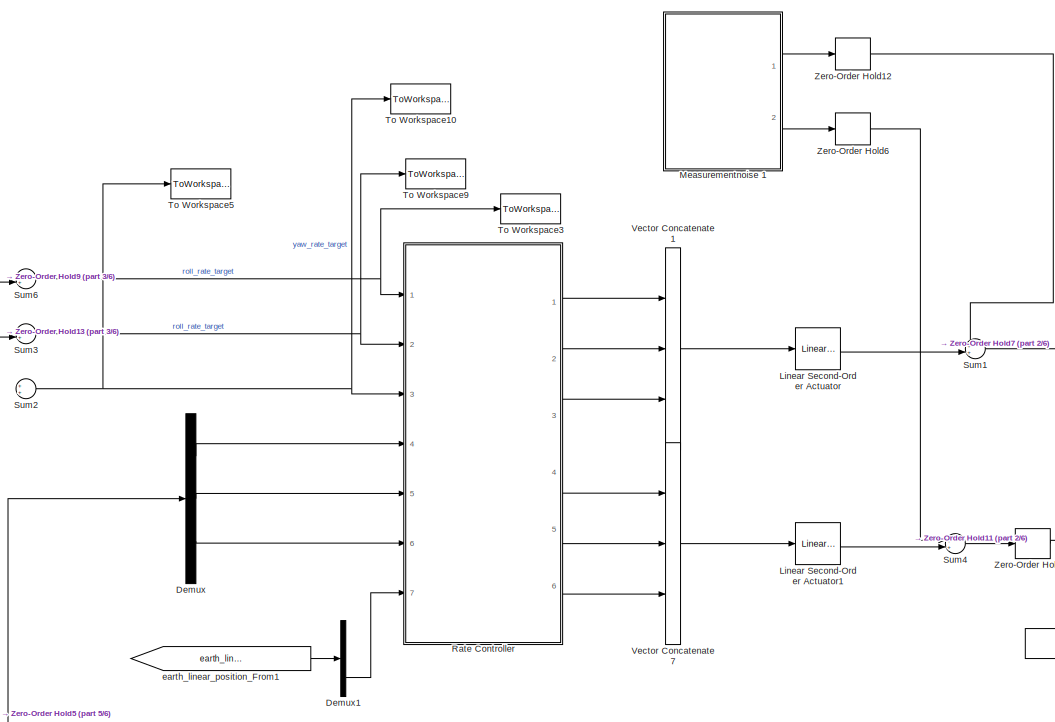
[diagram: root canvas - part 1/6, top center region]
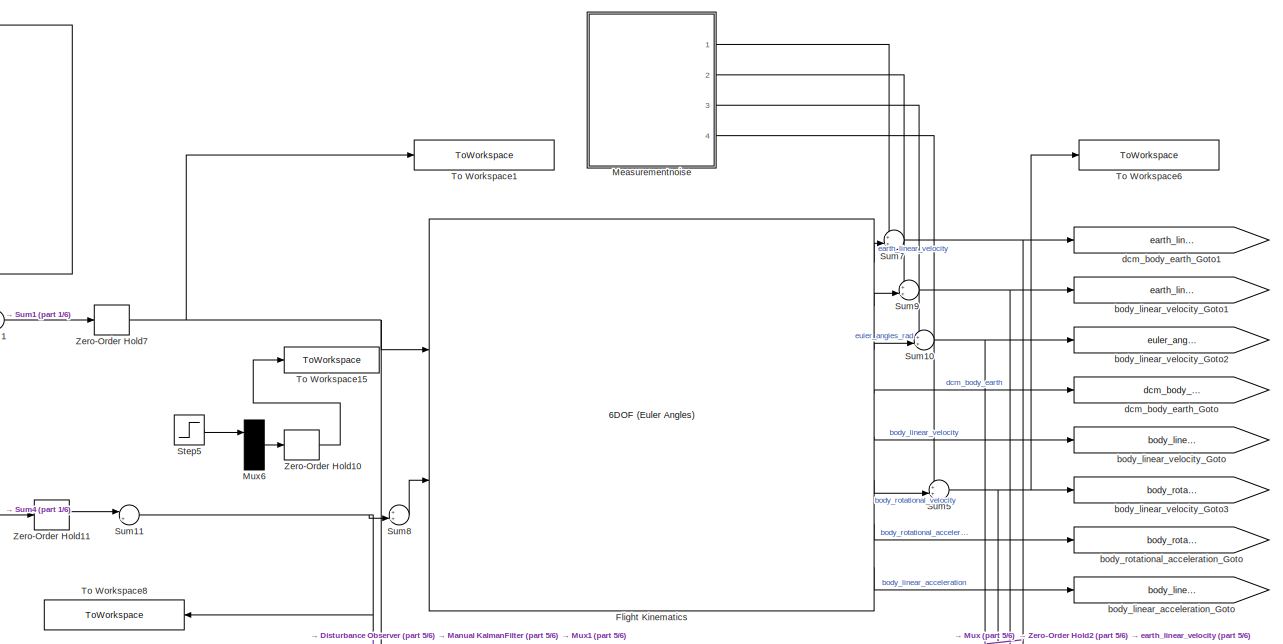
[diagram: root canvas - part 2/6, top right region]
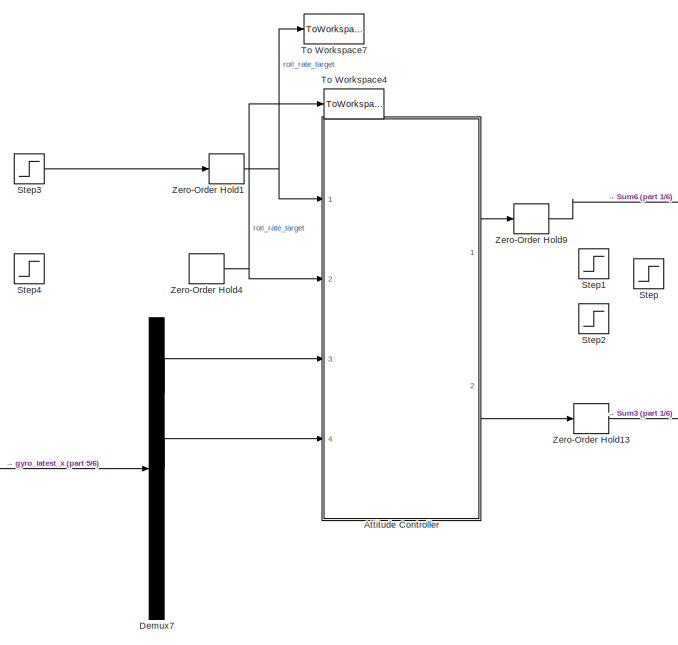
[diagram: root canvas - part 3/6, top left region]
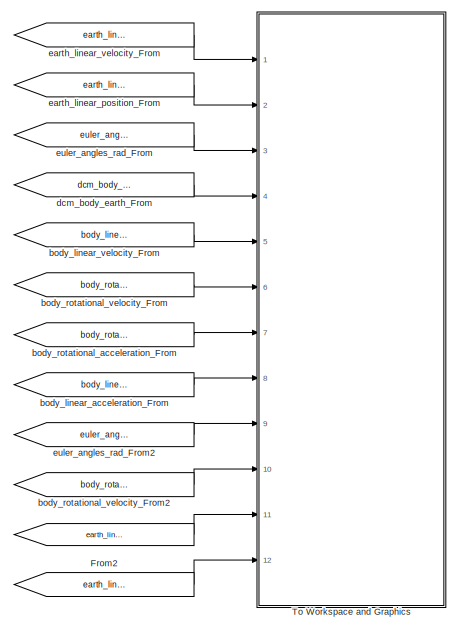
[diagram: root canvas - part 4/6, middle right region]
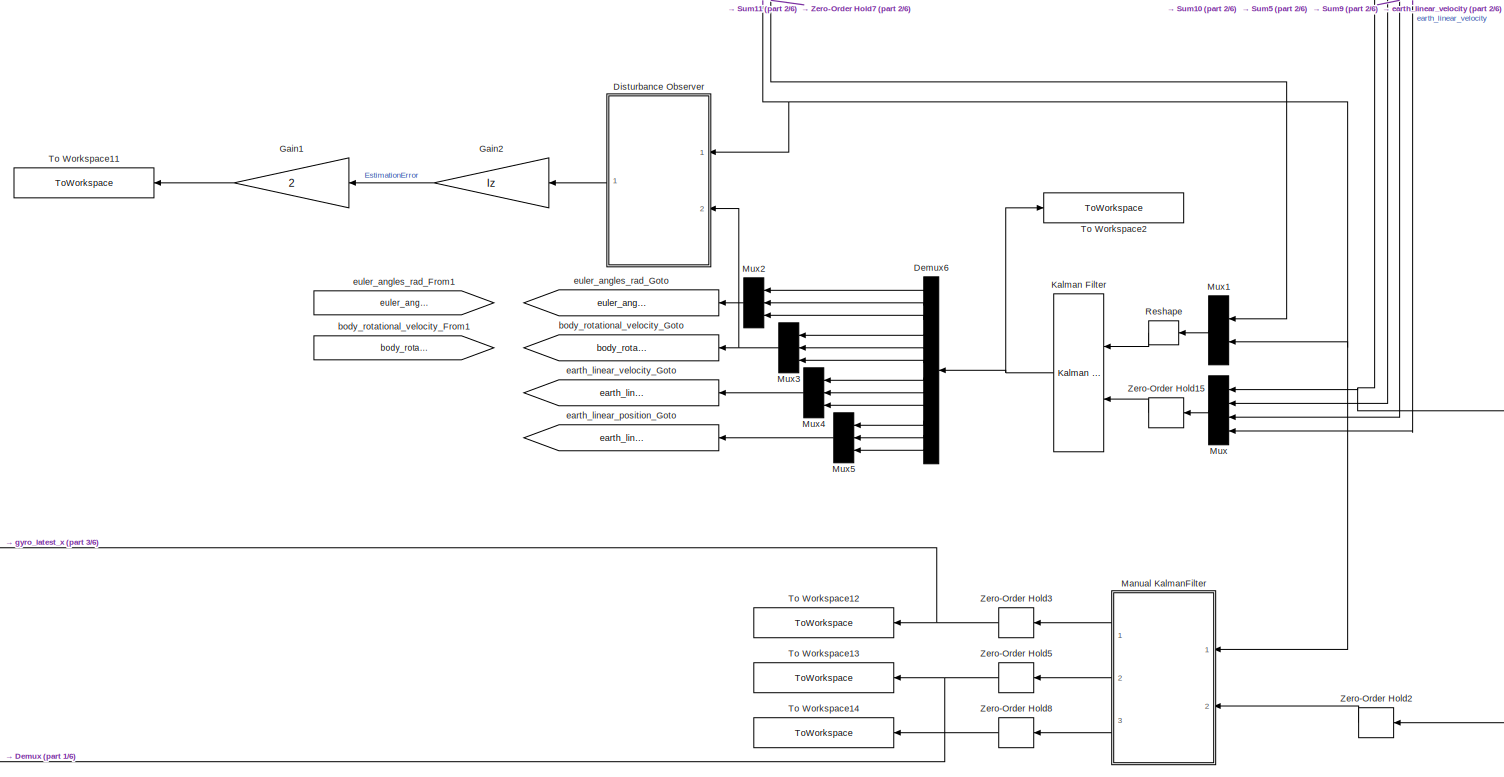
[diagram: root canvas - part 5/6, bottom center region]
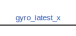
[diagram: root canvas - part 6/6, bottom left region]
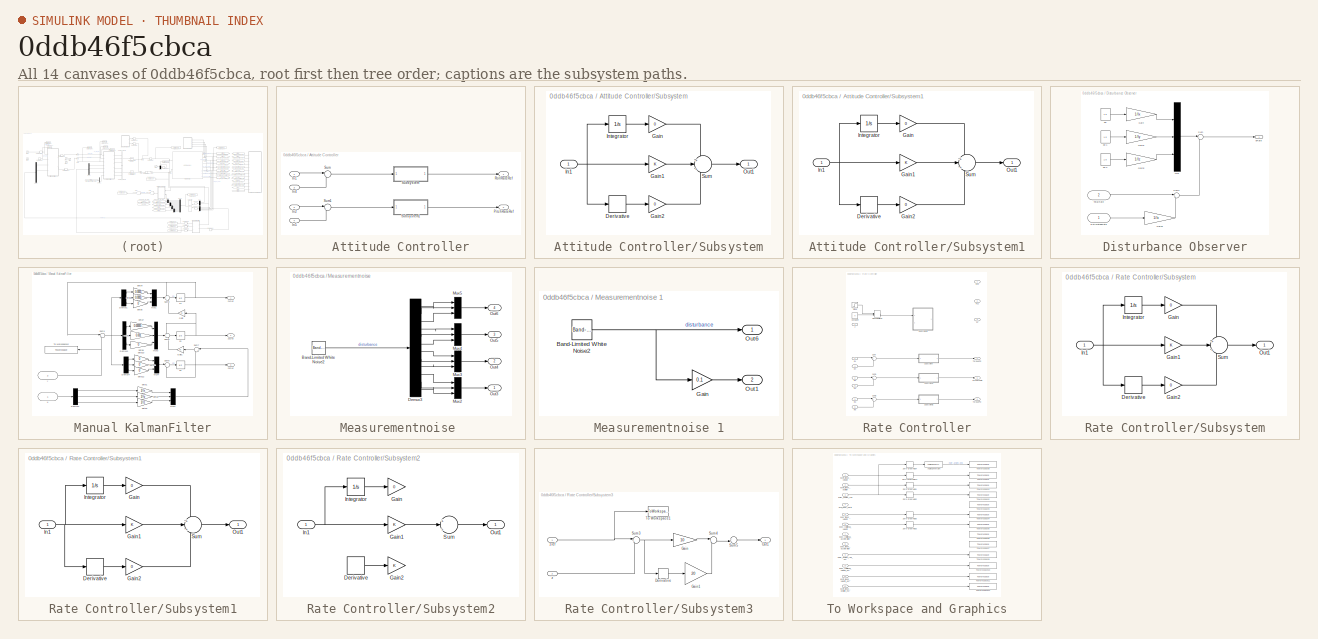
[diagram: thumbnail index - all 14 canvases of the model, root first then tree order]
MODEL slx_0ddb46f5cbca
KIND model
CONFIG AbsTol = auto
CONFIG FixedStep = 0.0000001
CONFIG MaxStep = auto
CONFIG MinStep = auto
CONFIG RelTol = 1e-3
CONFIG SampleTimeConstraint = Unconstrained
CONFIG Solver = VariableStepAuto
CONFIG SolverMode = Auto
CONFIG SolverName = VariableStepAuto
CONFIG StartTime = 0.0
CONFIG StopTime = 10
WORKSPACE source: MAT-file member
WORKSPACE MCOS: class17 (value not decoded)
BLOCK [From]       
  GotoTag = earth_linear_velocity_est
  TagVisibility = global
BLOCK [SubSystem] Attitude Controller
  Ports = [4, 2]
  RequestExecContextInheritance = off
  Variant = off
BLOCK [Inport] Attitude Controller/In1
  IconDisplay = Port number
BLOCK [Inport] Attitude Controller/In2
  IconDisplay = Port number
  Port = 2
BLOCK [Inport] Attitude Controller/In4
  IconDisplay = Port number
  Port = 3
BLOCK [Inport] Attitude Controller/In5
  IconDisplay = Port number
  Port = 4
BLOCK [Outport] Attitude Controller/PitchRateRef
  IconDisplay = Port number
  Port = 2
BLOCK [Outport] Attitude Controller/RollRateRef
  IconDisplay = Port number
BLOCK [SubSystem] Attitude Controller/Subsystem
  Ports = [1, 1]
  RequestExecContextInheritance = off
  Variant = off
BLOCK [Derivative] Attitude Controller/Subsystem/Derivative
BLOCK [Gain] Attitude Controller/Subsystem/Gain
  Gain = 0
  OutDataTypeStr = Inherit: Inherit via internal rule
  ParamDataTypeStr = Inherit: Inherit via internal rule
  SaturateOnIntegerOverflow = off
BLOCK [Gain] Attitude Controller/Subsystem/Gain1
  OutDataTypeStr = Inherit: Inherit via internal rule
  ParamDataTypeStr = Inherit: Inherit via internal rule
  SaturateOnIntegerOverflow = off
BLOCK [Gain] Attitude Controller/Subsystem/Gain2
  Gain = 0
  OutDataTypeStr = Inherit: Inherit via internal rule
  ParamDataTypeStr = Inherit: Inherit via internal rule
  SaturateOnIntegerOverflow = off
BLOCK [Inport] Attitude Controller/Subsystem/In1
  IconDisplay = Port number
BLOCK [Integrator] Attitude Controller/Subsystem/Integrator
  Ports = [1, 1]
BLOCK [Outport] Attitude Controller/Subsystem/Out1
  IconDisplay = Port number
BLOCK [Sum] Attitude Controller/Subsystem/Sum
  IconShape = round
  InputSameDT = off
  Inputs = +|+|+
  OutDataTypeStr = Inherit: Inherit via internal rule
  Ports = [3, 1]
  SaturateOnIntegerOverflow = off
BLOCK [SubSystem] Attitude Controller/Subsystem1
  Ports = [1, 1]
  RequestExecContextInheritance = off
  Variant = off
BLOCK [Derivative] Attitude Controller/Subsystem1/Derivative
BLOCK [Gain] Attitude Controller/Subsystem1/Gain
  Gain = 0
  OutDataTypeStr = Inherit: Inherit via internal rule
  ParamDataTypeStr = Inherit: Inherit via internal rule
  SaturateOnIntegerOverflow = off
BLOCK [Gain] Attitude Controller/Subsystem1/Gain1
  OutDataTypeStr = Inherit: Inherit via internal rule
  ParamDataTypeStr = Inherit: Inherit via internal rule
  SaturateOnIntegerOverflow = off
BLOCK [Gain] Attitude Controller/Subsystem1/Gain2
  Gain = 0
  OutDataTypeStr = Inherit: Inherit via internal rule
  ParamDataTypeStr = Inherit: Inherit via internal rule
  SaturateOnIntegerOverflow = off
BLOCK [Inport] Attitude Controller/Subsystem1/In1
  IconDisplay = Port number
BLOCK [Integrator] Attitude Controller/Subsystem1/Integrator
  Ports = [1, 1]
BLOCK [Outport] Attitude Controller/Subsystem1/Out1
  IconDisplay = Port number
BLOCK [Sum] Attitude Controller/Subsystem1/Sum
  IconShape = round
  InputSameDT = off
  Inputs = +|+|+
  OutDataTypeStr = Inherit: Inherit via internal rule
  Ports = [3, 1]
  SaturateOnIntegerOverflow = off
BLOCK [Sum] Attitude Controller/Sum
  IconShape = round
  InputSameDT = off
  Inputs = |+-
  OutDataTypeStr = Inherit: Inherit via internal rule
  Ports = [2, 1]
  SaturateOnIntegerOverflow = off
BLOCK [Sum] Attitude Controller/Sum1
  IconShape = round
  InputSameDT = off
  Inputs = |+-
  OutDataTypeStr = Inherit: Inherit via internal rule
  Ports = [2, 1]
  SaturateOnIntegerOverflow = off
BLOCK [Demux] Demux
  DisplayOption = bar
  Outputs = 3
  Ports = [1, 3]
BLOCK [Demux] Demux1
  DisplayOption = bar
  Outputs = 3
  Ports = [1, 3]
BLOCK [Demux] Demux6
  DisplayOption = bar
  Outputs = 12
  Ports = [1, 12]
BLOCK [Demux] Demux7
  DisplayOption = bar
  Outputs = 3
  Ports = [1, 3]
BLOCK [SubSystem] Disturbance Observer
  Ports = [2, 1]
  RequestExecContextInheritance = off
  Variant = off
BLOCK [Inport] Disturbance Observer/EstimatedRate
  IconDisplay = Port number
BLOCK [Gain] Disturbance Observer/Gain
  Gain = 1/Ix
  OutDataTypeStr = Inherit: Inherit via internal rule
  ParamDataTypeStr = Inherit: Inherit via internal rule
  SaturateOnIntegerOverflow = off
BLOCK [Gain] Disturbance Observer/Gain1
  Gain = 1/Iy
  OutDataTypeStr = Inherit: Inherit via internal rule
  ParamDataTypeStr = Inherit: Inherit via internal rule
  SaturateOnIntegerOverflow = off
BLOCK [Gain] Disturbance Observer/Gain2
  Gain = 1/Iz
  OutDataTypeStr = Inherit: Inherit via internal rule
  ParamDataTypeStr = Inherit: Inherit via internal rule
  SaturateOnIntegerOverflow = off
BLOCK [Gain] Disturbance Observer/Gain3
  Gain = 1/Ix
  OutDataTypeStr = Inherit: Inherit via internal rule
  ParamDataTypeStr = Inherit: Inherit via internal rule
  SaturateOnIntegerOverflow = off
BLOCK [Mux] Disturbance Observer/Mux
  DisplayOption = bar
  Inputs = 3
  Ports = [3, 1]
BLOCK [Sum] Disturbance Observer/Sum
  IconShape = round
  InputSameDT = off
  Inputs = |+-
  OutDataTypeStr = Inherit: Inherit via internal rule
  Ports = [2, 1]
  SaturateOnIntegerOverflow = off
BLOCK [Sum] Disturbance Observer/Sum1
  IconShape = round
  InputSameDT = off
  Inputs = |+-
  OutDataTypeStr = Inherit: Inherit via internal rule
  Ports = [2, 1]
  SaturateOnIntegerOverflow = off
BLOCK [Inport] Disturbance Observer/TotalRate
  IconDisplay = Port number
  Port = 2
BLOCK [Constant] Disturbance Observer/d0 
  Value = 1.5
BLOCK [Constant] Disturbance Observer/d0 1
  Value = 1.5
BLOCK [Constant] Disturbance Observer/d0 2
  Value = 1.5
BLOCK [Outport] Disturbance Observer/dRate
  IconDisplay = Port number
BLOCK [Reference] Flight Kinematics  REF=aerolib6dof2/6DOF (Euler Angles)
  Ports = [2, 8]
  SourceBlock = aerolib6dof2/6DOF (Euler Angles)
  SourceType = 6DOF EoM (Body Axis)
BLOCK [From] From2
  GotoTag = earth_linear_position_est
  TagVisibility = global
BLOCK [Gain] Gain1
  Gain = 2
  OutDataTypeStr = Inherit: Inherit via internal rule
  ParamDataTypeStr = Inherit: Inherit via internal rule
  SaturateOnIntegerOverflow = off
BLOCK [Gain] Gain2
  Gain = Iz
  OutDataTypeStr = Inherit: Inherit via internal rule
  ParamDataTypeStr = Inherit: Inherit via internal rule
  SaturateOnIntegerOverflow = off
BLOCK [Reference] Kalman Filter  REF=ctrlSharedLib/Kalman Filter
  Ports = [2, 1]
  SourceBlock = ctrlSharedLib/Kalman Filter
  SourceType = ctrlKalmanFilter
BLOCK [Reference] Linear Second-Order Actuator  REF=aerolibactuator/Linear Second-Order Actuator
  Ports = [1, 1]
  SourceBlock = aerolibactuator/Linear Second-Order Actuator
  SourceType = LinearSecondOrderActuator
BLOCK [Reference] Linear Second-Order Actuator1  REF=aerolibactuator/Linear Second-Order Actuator
  Ports = [1, 1]
  SourceBlock = aerolibactuator/Linear Second-Order Actuator
  SourceType = LinearSecondOrderActuator
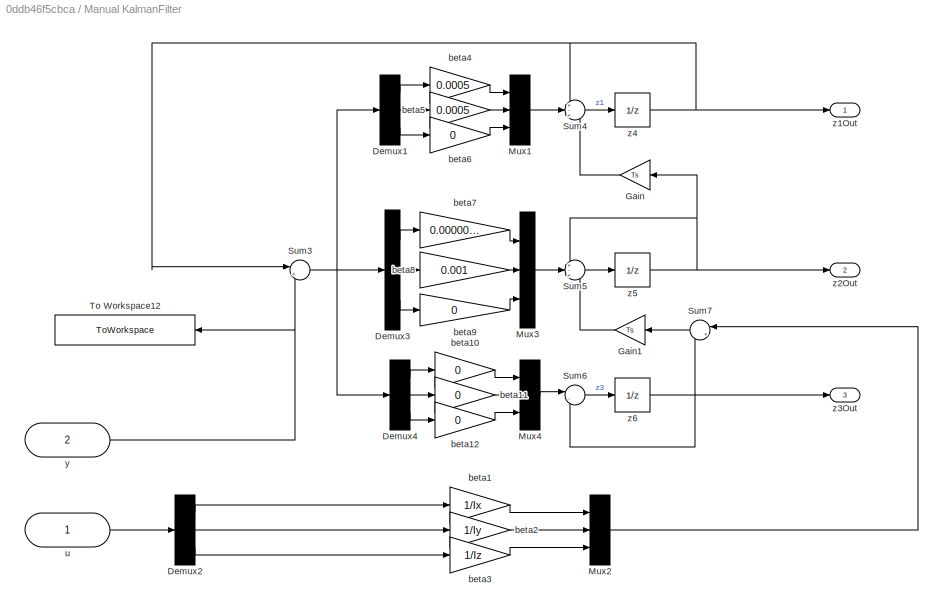
BLOCK [SubSystem] Manual KalmanFilter
  Ports = [2, 3]
  RequestExecContextInheritance = off
  Variant = off
BLOCK [Demux] Manual KalmanFilter/Demux1
  DisplayOption = bar
  Outputs = 3
  Ports = [1, 3]
BLOCK [Demux] Manual KalmanFilter/Demux2
  DisplayOption = bar
  Outputs = 3
  Ports = [1, 3]
BLOCK [Demux] Manual KalmanFilter/Demux3
  DisplayOption = bar
  Outputs = 3
  Ports = [1, 3]
BLOCK [Demux] Manual KalmanFilter/Demux4
  DisplayOption = bar
  Outputs = 3
  Ports = [1, 3]
BLOCK [Gain] Manual KalmanFilter/Gain
  Gain = Ts
  OutDataTypeStr = Inherit: Inherit via internal rule
  ParamDataTypeStr = Inherit: Inherit via internal rule
  SaturateOnIntegerOverflow = off
BLOCK [Gain] Manual KalmanFilter/Gain1
  Gain = Ts
  OutDataTypeStr = Inherit: Inherit via internal rule
  ParamDataTypeStr = Inherit: Inherit via internal rule
  SaturateOnIntegerOverflow = off
BLOCK [Mux] Manual KalmanFilter/Mux1
  DisplayOption = bar
  Inputs = 3
  Ports = [3, 1]
BLOCK [Mux] Manual KalmanFilter/Mux2
  DisplayOption = bar
  Inputs = 3
  Ports = [3, 1]
BLOCK [Mux] Manual KalmanFilter/Mux3
  DisplayOption = bar
  Inputs = 3
  Ports = [3, 1]
BLOCK [Mux] Manual KalmanFilter/Mux4
  DisplayOption = bar
  Inputs = 3
  Ports = [3, 1]
BLOCK [Sum] Manual KalmanFilter/Sum3
  IconShape = round
  InputSameDT = off
  Inputs = |+-
  OutDataTypeStr = Inherit: Inherit via internal rule
  Ports = [2, 1]
  SaturateOnIntegerOverflow = off
BLOCK [Sum] Manual KalmanFilter/Sum4
  IconShape = round
  InputSameDT = off
  Inputs = +-+
  OutDataTypeStr = Inherit: Inherit via internal rule
  Ports = [3, 1]
  SaturateOnIntegerOverflow = off
BLOCK [Sum] Manual KalmanFilter/Sum5
  IconShape = round
  InputSameDT = off
  Inputs = +-+
  OutDataTypeStr = Inherit: Inherit via internal rule
  Ports = [3, 1]
  SaturateOnIntegerOverflow = off
BLOCK [Sum] Manual KalmanFilter/Sum6
  IconShape = round
  InputSameDT = off
  Inputs = |-+
  OutDataTypeStr = Inherit: Inherit via internal rule
  Ports = [2, 1]
  SaturateOnIntegerOverflow = off
BLOCK [Sum] Manual KalmanFilter/Sum7
  IconShape = round
  InputSameDT = off
  Inputs = |++
  OutDataTypeStr = Inherit: Inherit via internal rule
  Ports = [2, 1]
  SaturateOnIntegerOverflow = off
BLOCK [ToWorkspace] Manual KalmanFilter/To Workspace12
  FixptAsFi = on
  MaxDataPoints = inf
  Ports = [1]
  SampleTime = -1
  Save2DSignal = 3-D array (concatenate along third dimension)
  VariableName = y
BLOCK [Gain] Manual KalmanFilter/beta1
  Gain = 1/Ix
  OutDataTypeStr = Inherit: Inherit via internal rule
  ParamDataTypeStr = Inherit: Inherit via internal rule
  SaturateOnIntegerOverflow = off
BLOCK [Gain] Manual KalmanFilter/beta10
  Gain = 0
  OutDataTypeStr = Inherit: Inherit via internal rule
  ParamDataTypeStr = Inherit: Inherit via internal rule
  SaturateOnIntegerOverflow = off
BLOCK [Gain] Manual KalmanFilter/beta11
  Gain = 0
  OutDataTypeStr = Inherit: Inherit via internal rule
  ParamDataTypeStr = Inherit: Inherit via internal rule
  SaturateOnIntegerOverflow = off
BLOCK [Gain] Manual KalmanFilter/beta12
  Gain = 0
  OutDataTypeStr = Inherit: Inherit via internal rule
  ParamDataTypeStr = Inherit: Inherit via internal rule
  SaturateOnIntegerOverflow = off
BLOCK [Gain] Manual KalmanFilter/beta2
  Gain = 1/Iy
  OutDataTypeStr = Inherit: Inherit via internal rule
  ParamDataTypeStr = Inherit: Inherit via internal rule
  SaturateOnIntegerOverflow = off
BLOCK [Gain] Manual KalmanFilter/beta3
  Gain = 1/Iz
  OutDataTypeStr = Inherit: Inherit via internal rule
  ParamDataTypeStr = Inherit: Inherit via internal rule
  SaturateOnIntegerOverflow = off
BLOCK [Gain] Manual KalmanFilter/beta4
  Gain = 0.0005
  OutDataTypeStr = Inherit: Inherit via internal rule
  ParamDataTypeStr = Inherit: Inherit via internal rule
  SaturateOnIntegerOverflow = off
BLOCK [Gain] Manual KalmanFilter/beta5
  Gain = 0.0005
  OutDataTypeStr = Inherit: Inherit via internal rule
  ParamDataTypeStr = Inherit: Inherit via internal rule
  SaturateOnIntegerOverflow = off
BLOCK [Gain] Manual KalmanFilter/beta6
  Gain = 0
  OutDataTypeStr = Inherit: Inherit via internal rule
  ParamDataTypeStr = Inherit: Inherit via internal rule
  SaturateOnIntegerOverflow = off
BLOCK [Gain] Manual KalmanFilter/beta7
  Gain = 0.0000000000001
  OutDataTypeStr = Inherit: Inherit via internal rule
  ParamDataTypeStr = Inherit: Inherit via internal rule
  SaturateOnIntegerOverflow = off
BLOCK [Gain] Manual KalmanFilter/beta8
  Gain = 0.001
  OutDataTypeStr = Inherit: Inherit via internal rule
  ParamDataTypeStr = Inherit: Inherit via internal rule
  SaturateOnIntegerOverflow = off
BLOCK [Gain] Manual KalmanFilter/beta9
  Gain = 0
  OutDataTypeStr = Inherit: Inherit via internal rule
  ParamDataTypeStr = Inherit: Inherit via internal rule
  SaturateOnIntegerOverflow = off
BLOCK [Inport] Manual KalmanFilter/u
  IconDisplay = Port number
BLOCK [Inport] Manual KalmanFilter/y
  IconDisplay = Port number
  Port = 2
BLOCK [Outport] Manual KalmanFilter/z1Out
  IconDisplay = Port number
BLOCK [Outport] Manual KalmanFilter/z2Out
  IconDisplay = Port number
  Port = 2
BLOCK [Outport] Manual KalmanFilter/z3Out
  IconDisplay = Port number
  Port = 3
BLOCK [UnitDelay] Manual KalmanFilter/z4
  InputProcessing = Elements as channels (sample based)
  SampleTime = Ts
BLOCK [UnitDelay] Manual KalmanFilter/z5
  InputProcessing = Elements as channels (sample based)
  SampleTime = Ts
BLOCK [UnitDelay] Manual KalmanFilter/z6
  InputProcessing = Elements as channels (sample based)
  SampleTime = Ts
BLOCK [SubSystem] Measurementnoise 
  Ports = [0, 4]
  RequestExecContextInheritance = off
  Variant = off
BLOCK [Reference] Measurementnoise /Band-Limited White Noise2  REF=simulink/Sources/Band-Limited
White Noise
  Ports = [0, 1]
  SourceBlock = simulink/Sources/Band-Limited\nWhite Noise
  SourceType = Band-Limited White Noise.
BLOCK [Demux] Measurementnoise /Demux3
  DisplayOption = bar
  Outputs = 12
  Ports = [1, 12]
BLOCK [Mux] Measurementnoise /Mux2
  DisplayOption = bar
  Inputs = 3
  Ports = [3, 1]
BLOCK [Mux] Measurementnoise /Mux3
  DisplayOption = bar
  Inputs = 3
  Ports = [3, 1]
BLOCK [Mux] Measurementnoise /Mux4
  DisplayOption = bar
  Inputs = 3
  Ports = [3, 1]
BLOCK [Mux] Measurementnoise /Mux5
  DisplayOption = bar
  Inputs = 3
  Ports = [3, 1]
BLOCK [Outport] Measurementnoise /Out3
  IconDisplay = Port number
BLOCK [Outport] Measurementnoise /Out4
  IconDisplay = Port number
  Port = 2
BLOCK [Outport] Measurementnoise /Out5
  IconDisplay = Port number
  Port = 3
BLOCK [Outport] Measurementnoise /Out6
  IconDisplay = Port number
  Port = 4
BLOCK [SubSystem] Measurementnoise 1
  Ports = [0, 2]
  RequestExecContextInheritance = off
  Variant = off
BLOCK [Reference] Measurementnoise 1/Band-Limited White Noise2  REF=simulink/Sources/Band-Limited
White Noise
  Ports = [0, 1]
  SourceBlock = simulink/Sources/Band-Limited\nWhite Noise
  SourceType = Band-Limited White Noise.
BLOCK [Gain] Measurementnoise 1/Gain
  Gain = 0.1
  OutDataTypeStr = Inherit: Inherit via internal rule
  ParamDataTypeStr = Inherit: Inherit via internal rule
  SaturateOnIntegerOverflow = off
BLOCK [Outport] Measurementnoise 1/Out1
  IconDisplay = Port number
  Port = 2
BLOCK [Outport] Measurementnoise 1/Out6
  IconDisplay = Port number
BLOCK [Mux] Mux
  DisplayOption = bar
  Ports = [4, 1]
BLOCK [Mux] Mux1
  DisplayOption = bar
  Inputs = 2
  Ports = [2, 1]
BLOCK [Mux] Mux2
  DisplayOption = bar
  Inputs = 3
  Ports = [3, 1]
BLOCK [Mux] Mux3
  DisplayOption = bar
  Inputs = 3
  Ports = [3, 1]
BLOCK [Mux] Mux4
  DisplayOption = bar
  Inputs = 3
  Ports = [3, 1]
BLOCK [Mux] Mux5
  DisplayOption = bar
  Inputs = 3
  Ports = [3, 1]
BLOCK [Mux] Mux6
  DisplayOption = bar
  Inputs = 3
  Ports = [3, 1]
BLOCK [SubSystem] Rate Controller
  Ports = [7, 6]
  RequestExecContextInheritance = off
  Variant = off
BLOCK [Constant] Rate Controller/Constant4
  Commented = on
  SampleTime = 0
  Value = 0
BLOCK [Outport] Rate Controller/Fz  
  IconDisplay = Port number
  Port = 3
BLOCK [Outport] Rate Controller/Fz  1
  IconDisplay = Port number
BLOCK [Outport] Rate Controller/Fz  2
  IconDisplay = Port number
  Port = 2
BLOCK [Inport] Rate Controller/In1
  IconDisplay = Port number
BLOCK [Inport] Rate Controller/In2
  IconDisplay = Port number
  Port = 2
BLOCK [Inport] Rate Controller/In3
  IconDisplay = Port number
  Port = 3
BLOCK [Inport] Rate Controller/In4
  IconDisplay = Port number
  Port = 4
BLOCK [Inport] Rate Controller/In5
  IconDisplay = Port number
  Port = 5
BLOCK [Inport] Rate Controller/In6
  IconDisplay = Port number
  Port = 6
BLOCK [ManualSwitch] Rate Controller/Manual Switch6
  Commented = on
BLOCK [Step] Rate Controller/Step6
  Commented = on
  SampleTime = 0
  Time = 2
BLOCK [SubSystem] Rate Controller/Subsystem
  Ports = [1, 1]
  RequestExecContextInheritance = off
  Variant = off
BLOCK [Derivative] Rate Controller/Subsystem/Derivative
BLOCK [Gain] Rate Controller/Subsystem/Gain
  Gain = 0
  OutDataTypeStr = Inherit: Inherit via internal rule
  ParamDataTypeStr = Inherit: Inherit via internal rule
  SaturateOnIntegerOverflow = off
BLOCK [Gain] Rate Controller/Subsystem/Gain1
  OutDataTypeStr = Inherit: Inherit via internal rule
  ParamDataTypeStr = Inherit: Inherit via internal rule
  SaturateOnIntegerOverflow = off
BLOCK [Gain] Rate Controller/Subsystem/Gain2
  Gain = 0
  OutDataTypeStr = Inherit: Inherit via internal rule
  ParamDataTypeStr = Inherit: Inherit via internal rule
  SaturateOnIntegerOverflow = off
BLOCK [Inport] Rate Controller/Subsystem/In1
  IconDisplay = Port number
BLOCK [Integrator] Rate Controller/Subsystem/Integrator
  Ports = [1, 1]
BLOCK [Outport] Rate Controller/Subsystem/Out1
  IconDisplay = Port number
BLOCK [Sum] Rate Controller/Subsystem/Sum
  IconShape = round
  InputSameDT = off
  Inputs = +|+|+
  OutDataTypeStr = Inherit: Inherit via internal rule
  Ports = [3, 1]
  SaturateOnIntegerOverflow = off
BLOCK [SubSystem] Rate Controller/Subsystem1
  Ports = [1, 1]
  RequestExecContextInheritance = off
  Variant = off
BLOCK [Derivative] Rate Controller/Subsystem1/Derivative
BLOCK [Gain] Rate Controller/Subsystem1/Gain
  Gain = 0
  OutDataTypeStr = Inherit: Inherit via internal rule
  ParamDataTypeStr = Inherit: Inherit via internal rule
  SaturateOnIntegerOverflow = off
BLOCK [Gain] Rate Controller/Subsystem1/Gain1
  OutDataTypeStr = Inherit: Inherit via internal rule
  ParamDataTypeStr = Inherit: Inherit via internal rule
  SaturateOnIntegerOverflow = off
BLOCK [Gain] Rate Controller/Subsystem1/Gain2
  Gain = 0
  OutDataTypeStr = Inherit: Inherit via internal rule
  ParamDataTypeStr = Inherit: Inherit via internal rule
  SaturateOnIntegerOverflow = off
BLOCK [Inport] Rate Controller/Subsystem1/In1
  IconDisplay = Port number
BLOCK [Integrator] Rate Controller/Subsystem1/Integrator
  Ports = [1, 1]
BLOCK [Outport] Rate Controller/Subsystem1/Out1
  IconDisplay = Port number
BLOCK [Sum] Rate Controller/Subsystem1/Sum
  IconShape = round
  InputSameDT = off
  Inputs = +|+|+
  OutDataTypeStr = Inherit: Inherit via internal rule
  Ports = [3, 1]
  SaturateOnIntegerOverflow = off
BLOCK [SubSystem] Rate Controller/Subsystem2
  Ports = [1, 1]
  RequestExecContextInheritance = off
  Variant = off
BLOCK [Derivative] Rate Controller/Subsystem2/Derivative
BLOCK [Gain] Rate Controller/Subsystem2/Gain
  Gain = 0
  OutDataTypeStr = Inherit: Inherit via internal rule
  ParamDataTypeStr = Inherit: Inherit via internal rule
  SaturateOnIntegerOverflow = off
BLOCK [Gain] Rate Controller/Subsystem2/Gain1
  OutDataTypeStr = Inherit: Inherit via internal rule
  ParamDataTypeStr = Inherit: Inherit via internal rule
  SaturateOnIntegerOverflow = off
BLOCK [Gain] Rate Controller/Subsystem2/Gain2
  OutDataTypeStr = Inherit: Inherit via internal rule
  ParamDataTypeStr = Inherit: Inherit via internal rule
  SaturateOnIntegerOverflow = off
BLOCK [Inport] Rate Controller/Subsystem2/In1
  IconDisplay = Port number
BLOCK [Integrator] Rate Controller/Subsystem2/Integrator
  Ports = [1, 1]
BLOCK [Outport] Rate Controller/Subsystem2/Out1
  IconDisplay = Port number
BLOCK [Sum] Rate Controller/Subsystem2/Sum
  IconShape = round
  InputSameDT = off
  Inputs = +|+|+
  OutDataTypeStr = Inherit: Inherit via internal rule
  Ports = [3, 1]
  SaturateOnIntegerOverflow = off
BLOCK [SubSystem] Rate Controller/Subsystem3
  Commented = on
  Ports = [2, 1]
  RequestExecContextInheritance = off
  Variant = off
BLOCK [Derivative] Rate Controller/Subsystem3/Derivative
BLOCK [Gain] Rate Controller/Subsystem3/Gain
  Gain = 10
  OutDataTypeStr = Inherit: Inherit via internal rule
  ParamDataTypeStr = Inherit: Inherit via internal rule
  SaturateOnIntegerOverflow = off
BLOCK [Gain] Rate Controller/Subsystem3/Gain1
  Gain = 20
  OutDataTypeStr = Inherit: Inherit via internal rule
  ParamDataTypeStr = Inherit: Inherit via internal rule
  SaturateOnIntegerOverflow = off
BLOCK [Outport] Rate Controller/Subsystem3/Out1
  IconDisplay = Port number
BLOCK [Sum] Rate Controller/Subsystem3/Sum3
  IconShape = round
  InputSameDT = off
  Inputs = |+-
  OutDataTypeStr = Inherit: Inherit via internal rule
  Ports = [2, 1]
  SaturateOnIntegerOverflow = off
BLOCK [Sum] Rate Controller/Subsystem3/Sum4
  IconShape = round
  InputSameDT = off
  Inputs = |++
  OutDataTypeStr = Inherit: Inherit via internal rule
  Ports = [2, 1]
  SaturateOnIntegerOverflow = off
BLOCK [Sum] Rate Controller/Subsystem3/Sum5
  IconShape = round
  InputSameDT = off
  Inputs = ++|
  OutDataTypeStr = Inherit: Inherit via internal rule
  Ports = [2, 1]
  SaturateOnIntegerOverflow = off
BLOCK [ToWorkspace] Rate Controller/Subsystem3/To Workspace1
  FixptAsFi = on
  MaxDataPoints = inf
  Ports = [1]
  SampleTime = -1
  Save2DSignal = 3-D array (concatenate along third dimension)
  VariableName = zref
BLOCK [Inport] Rate Controller/Subsystem3/z
  IconDisplay = Port number
  Port = 2
BLOCK [Inport] Rate Controller/Subsystem3/zref
  IconDisplay = Port number
BLOCK [Sum] Rate Controller/Sum
  IconShape = round
  InputSameDT = off
  Inputs = |+-
  OutDataTypeStr = Inherit: Inherit via internal rule
  Ports = [2, 1]
  SaturateOnIntegerOverflow = off
BLOCK [Sum] Rate Controller/Sum1
  IconShape = round
  InputSameDT = off
  Inputs = |+-
  OutDataTypeStr = Inherit: Inherit via internal rule
  Ports = [2, 1]
  SaturateOnIntegerOverflow = off
BLOCK [Sum] Rate Controller/Sum2
  IconShape = round
  InputSameDT = off
  Inputs = |+-
  OutDataTypeStr = Inherit: Inherit via internal rule
  Ports = [2, 1]
  SaturateOnIntegerOverflow = off
BLOCK [Outport] Rate Controller/Torque Phi
  IconDisplay = Port number
  Port = 4
BLOCK [Outport] Rate Controller/Torque Psi
  IconDisplay = Port number
  Port = 6
BLOCK [Outport] Rate Controller/Torque Theta
  IconDisplay = Port number
  Port = 5
BLOCK [Inport] Rate Controller/z
  IconDisplay = Port number
  Port = 7
BLOCK [Reshape] Reshape
  OutputDimensionality = Customize
  OutputDimensions = [6,1]
  Ports = [1, 1]
BLOCK [Step] Step
  After = 10
  SampleTime = 0
  Time = 0.5
BLOCK [Step] Step1
  After = 10
  SampleTime = 0
  Time = 0.5
BLOCK [Step] Step2
  After = 10
  SampleTime = 0
  Time = 0.5
BLOCK [Step] Step3
  After = 10
  SampleTime = 0
  Time = 0.5
BLOCK [Step] Step4
  After = 10
  SampleTime = 0
  Time = 0.5
BLOCK [Step] Step5
  After = 1.5
  SampleTime = 0
  Time = 2
BLOCK [Sum] Sum1
  IconShape = round
  InputSameDT = off
  Inputs = ++|
  OutDataTypeStr = Inherit: Inherit via internal rule
  Ports = [2, 1]
  SaturateOnIntegerOverflow = off
BLOCK [Sum] Sum10
  IconShape = round
  InputSameDT = off
  Inputs = ++|
  OutDataTypeStr = Inherit: Inherit via internal rule
  Ports = [2, 1]
  SaturateOnIntegerOverflow = off
BLOCK [Sum] Sum11
  IconShape = round
  InputSameDT = off
  Inputs = |+-
  OutDataTypeStr = Inherit: Inherit via internal rule
  Ports = [2, 1]
  SaturateOnIntegerOverflow = off
BLOCK [Sum] Sum2
  IconShape = round
  InputSameDT = off
  Inputs = ++|
  OutDataTypeStr = Inherit: Inherit via internal rule
  Ports = [2, 1]
  SaturateOnIntegerOverflow = off
BLOCK [Sum] Sum3
  IconShape = round
  InputSameDT = off
  Inputs = ++|
  OutDataTypeStr = Inherit: Inherit via internal rule
  Ports = [2, 1]
  SaturateOnIntegerOverflow = off
BLOCK [Sum] Sum4
  IconShape = round
  InputSameDT = off
  Inputs = ++|
  OutDataTypeStr = Inherit: Inherit via internal rule
  Ports = [2, 1]
  SaturateOnIntegerOverflow = off
BLOCK [Sum] Sum5
  IconShape = round
  InputSameDT = off
  Inputs = ++|
  OutDataTypeStr = Inherit: Inherit via internal rule
  Ports = [2, 1]
  SaturateOnIntegerOverflow = off
BLOCK [Sum] Sum6
  IconShape = round
  InputSameDT = off
  Inputs = ++|
  OutDataTypeStr = Inherit: Inherit via internal rule
  Ports = [2, 1]
  SaturateOnIntegerOverflow = off
BLOCK [Sum] Sum7
  IconShape = round
  InputSameDT = off
  Inputs = ++|
  OutDataTypeStr = Inherit: Inherit via internal rule
  Ports = [2, 1]
  SaturateOnIntegerOverflow = off
BLOCK [Sum] Sum8
  IconShape = round
  InputSameDT = off
  Inputs = ++|
  OutDataTypeStr = Inherit: Inherit via internal rule
  Ports = [2, 1]
  SaturateOnIntegerOverflow = off
BLOCK [Sum] Sum9
  IconShape = round
  InputSameDT = off
  Inputs = ++|
  OutDataTypeStr = Inherit: Inherit via internal rule
  Ports = [2, 1]
  SaturateOnIntegerOverflow = off
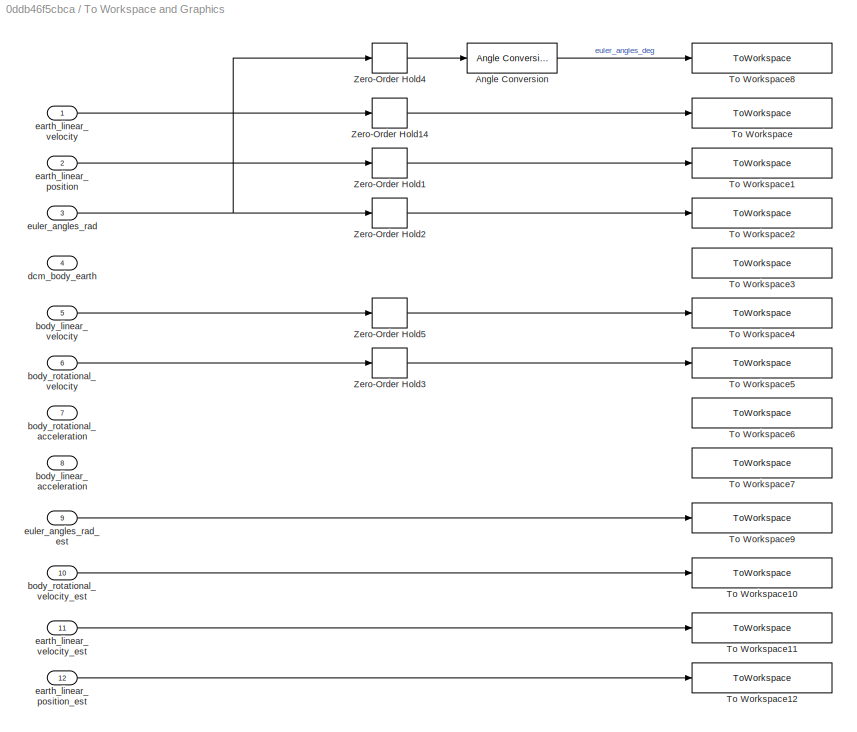
BLOCK [SubSystem] To Workspace and Graphics
  Ports = [12]
  RequestExecContextInheritance = off
  Variant = off
BLOCK [Reference] To Workspace and Graphics/Angle Conversion  REF=aerolibconvert2/Angle Conversion
  Ports = [1, 1]
  SourceBlock = aerolibconvert2/Angle Conversion
  SourceType = Angle Conversion
BLOCK [ToWorkspace] To Workspace and Graphics/To Workspace
  FixptAsFi = on
  MaxDataPoints = inf
  Ports = [1]
  SampleTime = -1
  Save2DSignal = 3-D array (concatenate along third dimension)
  VariableName = earth_linear_velocity
BLOCK [ToWorkspace] To Workspace and Graphics/To Workspace1
  FixptAsFi = on
  MaxDataPoints = inf
  Ports = [1]
  SampleTime = -1
  Save2DSignal = 3-D array (concatenate along third dimension)
  VariableName = earth_linear_position
BLOCK [ToWorkspace] To Workspace and Graphics/To Workspace10
  FixptAsFi = on
  MaxDataPoints = inf
  Ports = [1]
  SampleTime = -1
  Save2DSignal = 3-D array (concatenate along third dimension)
  VariableName = body_rotational_velocity_est
BLOCK [ToWorkspace] To Workspace and Graphics/To Workspace11
  FixptAsFi = on
  MaxDataPoints = inf
  Ports = [1]
  SampleTime = -1
  Save2DSignal = 3-D array (concatenate along third dimension)
  VariableName = earth_linear_velocity_est
BLOCK [ToWorkspace] To Workspace and Graphics/To Workspace12
  FixptAsFi = on
  MaxDataPoints = inf
  Ports = [1]
  SampleTime = -1
  Save2DSignal = 3-D array (concatenate along third dimension)
  VariableName = earth_linear_position_est
BLOCK [ToWorkspace] To Workspace and Graphics/To Workspace2
  FixptAsFi = on
  MaxDataPoints = inf
  Ports = [1]
  SampleTime = -1
  Save2DSignal = 3-D array (concatenate along third dimension)
  VariableName = euler_angles_rad
BLOCK [ToWorkspace] To Workspace and Graphics/To Workspace3
  FixptAsFi = on
  MaxDataPoints = inf
  Ports = [1]
  SampleTime = -1
  Save2DSignal = 3-D array (concatenate along third dimension)
  VariableName = dcm_body_earth
BLOCK [ToWorkspace] To Workspace and Graphics/To Workspace4
  FixptAsFi = on
  MaxDataPoints = inf
  Ports = [1]
  SampleTime = -1
  Save2DSignal = 3-D array (concatenate along third dimension)
  VariableName = body_linear_velocity
BLOCK [ToWorkspace] To Workspace and Graphics/To Workspace5
  FixptAsFi = on
  MaxDataPoints = inf
  Ports = [1]
  SampleTime = -1
  Save2DSignal = 3-D array (concatenate along third dimension)
  VariableName = body_rotational_velocity
BLOCK [ToWorkspace] To Workspace and Graphics/To Workspace6
  FixptAsFi = on
  MaxDataPoints = inf
  Ports = [1]
  SampleTime = -1
  Save2DSignal = 3-D array (concatenate along third dimension)
  VariableName = body_rotational_acceleration
BLOCK [ToWorkspace] To Workspace and Graphics/To Workspace7
  FixptAsFi = on
  MaxDataPoints = inf
  Ports = [1]
  SampleTime = -1
  Save2DSignal = 3-D array (concatenate along third dimension)
  VariableName = body_linear_acceleration
BLOCK [ToWorkspace] To Workspace and Graphics/To Workspace8
  FixptAsFi = on
  MaxDataPoints = inf
  Ports = [1]
  SampleTime = -1
  Save2DSignal = 3-D array (concatenate along third dimension)
  VariableName = euler_angles_deg
BLOCK [ToWorkspace] To Workspace and Graphics/To Workspace9
  FixptAsFi = on
  MaxDataPoints = inf
  Ports = [1]
  SampleTime = -1
  Save2DSignal = 3-D array (concatenate along third dimension)
  VariableName = euler_angles_rad_est
BLOCK [ZeroOrderHold] To Workspace and Graphics/Zero-Order Hold1
  SampleTime = dtzoh
BLOCK [ZeroOrderHold] To Workspace and Graphics/Zero-Order Hold14
  SampleTime = dtzoh
BLOCK [ZeroOrderHold] To Workspace and Graphics/Zero-Order Hold2
  SampleTime = dtzoh
BLOCK [ZeroOrderHold] To Workspace and Graphics/Zero-Order Hold3
  SampleTime = dtzoh
BLOCK [ZeroOrderHold] To Workspace and Graphics/Zero-Order Hold4
  SampleTime = dtzoh
BLOCK [ZeroOrderHold] To Workspace and Graphics/Zero-Order Hold5
  SampleTime = dtzoh
BLOCK [Inport] To Workspace and Graphics/body_linear_acceleration
  IconDisplay = Port number
  Port = 8
BLOCK [Inport] To Workspace and Graphics/body_linear_velocity
  IconDisplay = Port number
  Port = 5
BLOCK [Inport] To Workspace and Graphics/body_rotational_acceleration
  IconDisplay = Port number
  Port = 7
BLOCK [Inport] To Workspace and Graphics/body_rotational_velocity
  IconDisplay = Port number
  Port = 6
BLOCK [Inport] To Workspace and Graphics/body_rotational_velocity_est
  IconDisplay = Port number
  Port = 10
BLOCK [Inport] To Workspace and Graphics/dcm_body_earth
  IconDisplay = Port number
  Port = 4
BLOCK [Inport] To Workspace and Graphics/earth_linear_position
  IconDisplay = Port number
  Port = 2
BLOCK [Inport] To Workspace and Graphics/earth_linear_position_est
  IconDisplay = Port number
  Port = 12
BLOCK [Inport] To Workspace and Graphics/earth_linear_velocity
  IconDisplay = Port number
BLOCK [Inport] To Workspace and Graphics/earth_linear_velocity_est
  IconDisplay = Port number
  Port = 11
BLOCK [Inport] To Workspace and Graphics/euler_angles_rad
  IconDisplay = Port number
  Port = 3
BLOCK [Inport] To Workspace and Graphics/euler_angles_rad_est
  IconDisplay = Port number
  Port = 9
BLOCK [ToWorkspace] To Workspace1
  FixptAsFi = on
  MaxDataPoints = inf
  Ports = [1]
  SampleTime = -1
  Save2DSignal = 3-D array (concatenate along third dimension)
  VariableName = force
BLOCK [ToWorkspace] To Workspace10
  FixptAsFi = on
  MaxDataPoints = inf
  Ports = [1]
  SampleTime = -1
  Save2DSignal = 3-D array (concatenate along third dimension)
  VariableName = refyawrate1
BLOCK [ToWorkspace] To Workspace11
  FixptAsFi = on
  MaxDataPoints = inf
  Ports = [1]
  SampleTime = -1
  Save2DSignal = 3-D array (concatenate along third dimension)
  VariableName = dhat
BLOCK [ToWorkspace] To Workspace12
  FixptAsFi = on
  MaxDataPoints = inf
  Ports = [1]
  SampleTime = -1
  Save2DSignal = 3-D array (concatenate along third dimension)
  VariableName = z1
BLOCK [ToWorkspace] To Workspace13
  FixptAsFi = on
  MaxDataPoints = inf
  Ports = [1]
  SampleTime = -1
  Save2DSignal = 3-D array (concatenate along third dimension)
  VariableName = z2
BLOCK [ToWorkspace] To Workspace14
  FixptAsFi = on
  MaxDataPoints = inf
  Ports = [1]
  SampleTime = -1
  Save2DSignal = 3-D array (concatenate along third dimension)
  VariableName = z3
BLOCK [ToWorkspace] To Workspace15
  FixptAsFi = on
  MaxDataPoints = inf
  Ports = [1]
  SampleTime = -1
  Save2DSignal = 3-D array (concatenate along third dimension)
  VariableName = dNW
BLOCK [ToWorkspace] To Workspace2
  FixptAsFi = on
  MaxDataPoints = inf
  Ports = [1]
  SampleTime = -1
  Save2DSignal = 3-D array (concatenate along third dimension)
  VariableName = xhat
BLOCK [ToWorkspace] To Workspace3
  FixptAsFi = on
  MaxDataPoints = inf
  Ports = [1]
  SampleTime = -1
  Save2DSignal = 3-D array (concatenate along third dimension)
  VariableName = refroll
BLOCK [ToWorkspace] To Workspace4
  FixptAsFi = on
  MaxDataPoints = inf
  Ports = [1]
  SampleTime = -1
  Save2DSignal = 3-D array (concatenate along third dimension)
  VariableName = refpitch1
BLOCK [ToWorkspace] To Workspace5
  FixptAsFi = on
  MaxDataPoints = inf
  Ports = [1]
  SampleTime = -1
  Save2DSignal = 3-D array (concatenate along third dimension)
  VariableName = refyawrate
BLOCK [ToWorkspace] To Workspace6
  FixptAsFi = on
  MaxDataPoints = inf
  Ports = [1]
  SampleTime = -1
  Save2DSignal = 3-D array (concatenate along third dimension)
  VariableName = rawdata
BLOCK [ToWorkspace] To Workspace7
  FixptAsFi = on
  MaxDataPoints = inf
  Ports = [1]
  SampleTime = -1
  Save2DSignal = 3-D array (concatenate along third dimension)
  VariableName = refroll1
BLOCK [ToWorkspace] To Workspace8
  FixptAsFi = on
  MaxDataPoints = inf
  Ports = [1]
  SampleTime = -1
  Save2DSignal = 3-D array (concatenate along third dimension)
  VariableName = moment
BLOCK [ToWorkspace] To Workspace9
  FixptAsFi = on
  MaxDataPoints = inf
  Ports = [1]
  SampleTime = -1
  Save2DSignal = 3-D array (concatenate along third dimension)
  VariableName = refpitch
BLOCK [Concatenate] Vector Concatenate1
  NumInputs = 3
  Ports = [3, 1]
BLOCK [Concatenate] Vector Concatenate7
  NumInputs = 3
  Ports = [3, 1]
BLOCK [ZeroOrderHold] Zero-Order Hold1
  SampleTime = dtzoh
BLOCK [ZeroOrderHold] Zero-Order Hold10
  SampleTime = dtzoh
BLOCK [ZeroOrderHold] Zero-Order Hold11
  SampleTime = dtzoh
BLOCK [ZeroOrderHold] Zero-Order Hold12
  SampleTime = dtzoh
BLOCK [ZeroOrderHold] Zero-Order Hold13
  SampleTime = dtzoh
BLOCK [ZeroOrderHold] Zero-Order Hold15
  SampleTime = dtzoh
BLOCK [ZeroOrderHold] Zero-Order Hold2
  SampleTime = dtzoh
BLOCK [ZeroOrderHold] Zero-Order Hold3
  SampleTime = dtzoh
BLOCK [ZeroOrderHold] Zero-Order Hold4
  SampleTime = dtzoh
BLOCK [ZeroOrderHold] Zero-Order Hold5
  SampleTime = dtzoh
BLOCK [ZeroOrderHold] Zero-Order Hold6
  SampleTime = dtzoh
BLOCK [ZeroOrderHold] Zero-Order Hold7
  SampleTime = dtzoh
BLOCK [ZeroOrderHold] Zero-Order Hold8
  SampleTime = dtzoh
BLOCK [ZeroOrderHold] Zero-Order Hold9
  SampleTime = dtzoh
BLOCK [From] body_linear_acceleration_From
  GotoTag = body_linear_acceleration
  TagVisibility = global
BLOCK [Goto] body_linear_acceleration_Goto
  GotoTag = body_linear_acceleration
  TagVisibility = global
BLOCK [From] body_linear_velocity_From
  GotoTag = body_linear_velocity
  TagVisibility = global
BLOCK [Goto] body_linear_velocity_Goto
  GotoTag = body_linear_velocity
  TagVisibility = global
BLOCK [Goto] body_linear_velocity_Goto1
  GotoTag = earth_linear_position
  TagVisibility = global
BLOCK [Goto] body_linear_velocity_Goto2
  GotoTag = euler_angles_rad
  TagVisibility = global
BLOCK [Goto] body_linear_velocity_Goto3
  GotoTag = body_rotational_velocity
  TagVisibility = global
BLOCK [From] body_rotational_acceleration_From
  GotoTag = body_rotational_acceleration
  TagVisibility = global
BLOCK [Goto] body_rotational_acceleration_Goto
  GotoTag = body_rotational_acceleration
  TagVisibility = global
BLOCK [From] body_rotational_velocity_From
  GotoTag = body_rotational_velocity
  TagVisibility = global
BLOCK [From] body_rotational_velocity_From1
  GotoTag = body_rotational_velocity_est
  TagVisibility = global
BLOCK [From] body_rotational_velocity_From2
  GotoTag = body_rotational_velocity_est
  TagVisibility = global
BLOCK [Goto] body_rotational_velocity_Goto
  GotoTag = body_rotational_velocity_est
  TagVisibility = global
BLOCK [From] dcm_body_earth_From
  GotoTag = dcm_body_earth
  TagVisibility = global
BLOCK [Goto] dcm_body_earth_Goto
  GotoTag = dcm_body_earth
  TagVisibility = global
BLOCK [Goto] dcm_body_earth_Goto1
  GotoTag = earth_linear_velocity
  TagVisibility = global
BLOCK [From] earth_linear_position_From
  GotoTag = earth_linear_position
  TagVisibility = global
BLOCK [From] earth_linear_position_From1
  GotoTag = earth_linear_position
  TagVisibility = global
BLOCK [Goto] earth_linear_position_Goto
  GotoTag = earth_linear_position_est
  TagVisibility = global
BLOCK [From] earth_linear_velocity_From
  GotoTag = earth_linear_velocity
  TagVisibility = global
BLOCK [Goto] earth_linear_velocity_Goto
  GotoTag = earth_linear_velocity_est
  TagVisibility = global
BLOCK [From] euler_angles_rad_From
  GotoTag = euler_angles_rad
  TagVisibility = global
BLOCK [From] euler_angles_rad_From1
  GotoTag = euler_angles_rad_est
  TagVisibility = global
BLOCK [From] euler_angles_rad_From2
  GotoTag = euler_angles_rad_est
  TagVisibility = global
BLOCK [Goto] euler_angles_rad_Goto
  GotoTag = euler_angles_rad_est
  TagVisibility = global
LINE       :1 -> To Workspace and Graphics:11
LINE Attitude Controller/In1:1 -> Attitude Controller/Sum:1
LINE Attitude Controller/In2:1 -> Attitude Controller/Sum1:1
LINE Attitude Controller/In4:1 -> Attitude Controller/Sum:2
LINE Attitude Controller/In5:1 -> Attitude Controller/Sum1:2
LINE Attitude Controller/Subsystem/Derivative:1 -> Attitude Controller/Subsystem/Gain2:1
LINE Attitude Controller/Subsystem/Gain1:1 -> Attitude Controller/Subsystem/Sum:2
LINE Attitude Controller/Subsystem/Gain2:1 -> Attitude Controller/Subsystem/Sum:3
LINE Attitude Controller/Subsystem/Gain:1 -> Attitude Controller/Subsystem/Sum:1
NET Attitude Controller/Subsystem/In1:1 -> Attitude Controller/Subsystem/Derivative:1, Attitude Controller/Subsystem/Gain1:1, Attitude Controller/Subsystem/Integrator:1
LINE Attitude Controller/Subsystem/Integrator:1 -> Attitude Controller/Subsystem/Gain:1
LINE Attitude Controller/Subsystem/Sum:1 -> Attitude Controller/Subsystem/Out1:1
LINE Attitude Controller/Subsystem1/Derivative:1 -> Attitude Controller/Subsystem1/Gain2:1
LINE Attitude Controller/Subsystem1/Gain1:1 -> Attitude Controller/Subsystem1/Sum:2
LINE Attitude Controller/Subsystem1/Gain2:1 -> Attitude Controller/Subsystem1/Sum:3
LINE Attitude Controller/Subsystem1/Gain:1 -> Attitude Controller/Subsystem1/Sum:1
NET Attitude Controller/Subsystem1/In1:1 -> Attitude Controller/Subsystem1/Derivative:1, Attitude Controller/Subsystem1/Gain1:1, Attitude Controller/Subsystem1/Integrator:1
LINE Attitude Controller/Subsystem1/Integrator:1 -> Attitude Controller/Subsystem1/Gain:1
LINE Attitude Controller/Subsystem1/Sum:1 -> Attitude Controller/Subsystem1/Out1:1
LINE Attitude Controller/Subsystem1:1 -> Attitude Controller/PitchRateRef:1
LINE Attitude Controller/Subsystem:1 -> Attitude Controller/RollRateRef:1
LINE Attitude Controller/Sum1:1 -> Attitude Controller/Subsystem1:1
LINE Attitude Controller/Sum:1 -> Attitude Controller/Subsystem:1
LINE Attitude Controller:1 -> Zero-Order Hold9:1
LINE Attitude Controller:2 -> Zero-Order Hold13:1
LINE Demux1:3 -> Rate Controller:7
LINE Demux6:1 -> Mux2:1
LINE Demux6:10 -> Mux5:1
LINE Demux6:11 -> Mux5:2
LINE Demux6:12 -> Mux5:3
LINE Demux6:2 -> Mux2:2
LINE Demux6:3 -> Mux2:3
LINE Demux6:4 -> Mux3:1
LINE Demux6:5 -> Mux3:2
LINE Demux6:6 -> Mux3:3
LINE Demux6:7 -> Mux4:1
LINE Demux6:8 -> Mux4:2
LINE Demux6:9 -> Mux4:3
LINE Demux7:1 -> Attitude Controller:3
LINE Demux7:2 -> Attitude Controller:4
LINE Demux:1 -> Rate Controller:4
LINE Demux:2 -> Rate Controller:5
LINE Demux:3 -> Rate Controller:6
LINE Disturbance Observer/EstimatedRate:1 -> Disturbance Observer/Gain3:1
LINE Disturbance Observer/Gain1:1 -> Disturbance Observer/Mux:2
LINE Disturbance Observer/Gain2:1 -> Disturbance Observer/Mux:3
LINE Disturbance Observer/Gain3:1 -> Disturbance Observer/Sum1:2
LINE Disturbance Observer/Gain:1 -> Disturbance Observer/Mux:1
LINE Disturbance Observer/Mux:1 -> Disturbance Observer/Sum:1
LINE Disturbance Observer/Sum1:1 -> Disturbance Observer/Sum:2
LINE Disturbance Observer/Sum:1 -> Disturbance Observer/dRate:1
LINE Disturbance Observer/TotalRate:1 -> Disturbance Observer/Sum1:1
LINE Disturbance Observer/d0 1:1 -> Disturbance Observer/Gain1:1
LINE Disturbance Observer/d0 2:1 -> Disturbance Observer/Gain2:1
LINE Disturbance Observer/d0 :1 -> Disturbance Observer/Gain:1
LINE Disturbance Observer:1 -> Gain2:1
LINE Flight Kinematics:1 -> Sum7:2
LINE Flight Kinematics:2 -> Sum9:2
LINE Flight Kinematics:3 -> Sum10:2
LINE Flight Kinematics:4 -> dcm_body_earth_Goto:1
LINE Flight Kinematics:5 -> body_linear_velocity_Goto:1
LINE Flight Kinematics:6 -> Sum5:2
LINE Flight Kinematics:7 -> body_rotational_acceleration_Goto:1
LINE Flight Kinematics:8 -> body_linear_acceleration_Goto:1
LINE From2:1 -> To Workspace and Graphics:12
LINE Gain1:1 -> To Workspace11:1
LINE Gain2:1 -> Gain1:1
NET Kalman Filter:1 -> Demux6:1, To Workspace2:1
LINE Linear Second-Order Actuator1:1 -> Sum4:2
LINE Linear Second-Order Actuator:1 -> Sum1:2
LINE Manual KalmanFilter/Demux1:1 -> Manual KalmanFilter/beta4:1
LINE Manual KalmanFilter/Demux1:2 -> Manual KalmanFilter/beta5:1
LINE Manual KalmanFilter/Demux1:3 -> Manual KalmanFilter/beta6:1
LINE Manual KalmanFilter/Demux2:1 -> Manual KalmanFilter/beta1:1
LINE Manual KalmanFilter/Demux2:2 -> Manual KalmanFilter/beta2:1
LINE Manual KalmanFilter/Demux2:3 -> Manual KalmanFilter/beta3:1
LINE Manual KalmanFilter/Demux3:1 -> Manual KalmanFilter/beta7:1
LINE Manual KalmanFilter/Demux3:2 -> Manual KalmanFilter/beta8:1
LINE Manual KalmanFilter/Demux3:3 -> Manual KalmanFilter/beta9:1
LINE Manual KalmanFilter/Demux4:1 -> Manual KalmanFilter/beta10:1
LINE Manual KalmanFilter/Demux4:2 -> Manual KalmanFilter/beta11:1
LINE Manual KalmanFilter/Demux4:3 -> Manual KalmanFilter/beta12:1
LINE Manual KalmanFilter/Gain1:1 -> Manual KalmanFilter/Sum5:3
LINE Manual KalmanFilter/Gain:1 -> Manual KalmanFilter/Sum4:3
LINE Manual KalmanFilter/Mux1:1 -> Manual KalmanFilter/Sum4:2
LINE Manual KalmanFilter/Mux2:1 -> Manual KalmanFilter/Sum7:1
LINE Manual KalmanFilter/Mux3:1 -> Manual KalmanFilter/Sum5:2
LINE Manual KalmanFilter/Mux4:1 -> Manual KalmanFilter/Sum6:1
NET Manual KalmanFilter/Sum3:1 -> Manual KalmanFilter/Demux1:1, Manual KalmanFilter/Demux3:1, Manual KalmanFilter/Demux4:1
LINE Manual KalmanFilter/Sum4:1 -> Manual KalmanFilter/z4:1
LINE Manual KalmanFilter/Sum5:1 -> Manual KalmanFilter/z5:1
LINE Manual KalmanFilter/Sum6:1 -> Manual KalmanFilter/z6:1
LINE Manual KalmanFilter/Sum7:1 -> Manual KalmanFilter/Gain1:1
LINE Manual KalmanFilter/beta10:1 -> Manual KalmanFilter/Mux4:1
LINE Manual KalmanFilter/beta11:1 -> Manual KalmanFilter/Mux4:2
LINE Manual KalmanFilter/beta12:1 -> Manual KalmanFilter/Mux4:3
LINE Manual KalmanFilter/beta1:1 -> Manual KalmanFilter/Mux2:1
LINE Manual KalmanFilter/beta2:1 -> Manual KalmanFilter/Mux2:2
LINE Manual KalmanFilter/beta3:1 -> Manual KalmanFilter/Mux2:3
LINE Manual KalmanFilter/beta4:1 -> Manual KalmanFilter/Mux1:1
LINE Manual KalmanFilter/beta5:1 -> Manual KalmanFilter/Mux1:2
LINE Manual KalmanFilter/beta6:1 -> Manual KalmanFilter/Mux1:3
LINE Manual KalmanFilter/beta7:1 -> Manual KalmanFilter/Mux3:1
LINE Manual KalmanFilter/beta8:1 -> Manual KalmanFilter/Mux3:2
LINE Manual KalmanFilter/beta9:1 -> Manual KalmanFilter/Mux3:3
LINE Manual KalmanFilter/u:1 -> Manual KalmanFilter/Demux2:1
NET Manual KalmanFilter/y:1 -> Manual KalmanFilter/Sum3:2, Manual KalmanFilter/To Workspace12:1
NET Manual KalmanFilter/z4:1 -> Manual KalmanFilter/Sum3:1, Manual KalmanFilter/Sum4:1, Manual KalmanFilter/z1Out:1
NET Manual KalmanFilter/z5:1 -> Manual KalmanFilter/Gain:1, Manual KalmanFilter/Sum5:1, Manual KalmanFilter/z2Out:1
NET Manual KalmanFilter/z6:1 -> Manual KalmanFilter/Sum6:2, Manual KalmanFilter/Sum7:2, Manual KalmanFilter/z3Out:1
LINE Manual KalmanFilter:1 -> Zero-Order Hold3:1
LINE Manual KalmanFilter:2 -> Zero-Order Hold5:1
LINE Manual KalmanFilter:3 -> Zero-Order Hold8:1
LINE Measurementnoise /Band-Limited White Noise2:1 -> Measurementnoise /Demux3:1
LINE Measurementnoise /Demux3:1 -> Measurementnoise /Mux5:1
LINE Measurementnoise /Demux3:10 -> Measurementnoise /Mux2:1
LINE Measurementnoise /Demux3:11 -> Measurementnoise /Mux2:2
LINE Measurementnoise /Demux3:12 -> Measurementnoise /Mux2:3
LINE Measurementnoise /Demux3:2 -> Measurementnoise /Mux5:2
LINE Measurementnoise /Demux3:3 -> Measurementnoise /Mux5:3
LINE Measurementnoise /Demux3:4 -> Measurementnoise /Mux4:1
LINE Measurementnoise /Demux3:5 -> Measurementnoise /Mux4:2
LINE Measurementnoise /Demux3:6 -> Measurementnoise /Mux4:3
LINE Measurementnoise /Demux3:7 -> Measurementnoise /Mux3:1
LINE Measurementnoise /Demux3:8 -> Measurementnoise /Mux3:2
LINE Measurementnoise /Demux3:9 -> Measurementnoise /Mux3:3
LINE Measurementnoise /Mux2:1 -> Measurementnoise /Out3:1
LINE Measurementnoise /Mux3:1 -> Measurementnoise /Out4:1
LINE Measurementnoise /Mux4:1 -> Measurementnoise /Out5:1
LINE Measurementnoise /Mux5:1 -> Measurementnoise /Out6:1
NET Measurementnoise 1/Band-Limited White Noise2:1 -> Measurementnoise 1/Gain:1, Measurementnoise 1/Out6:1
LINE Measurementnoise 1/Gain:1 -> Measurementnoise 1/Out1:1
LINE Measurementnoise 1:1 -> Zero-Order Hold12:1
LINE Measurementnoise 1:2 -> Zero-Order Hold6:1
LINE Measurementnoise :1 -> Sum7:1
LINE Measurementnoise :2 -> Sum9:1
LINE Measurementnoise :3 -> Sum10:1
LINE Measurementnoise :4 -> Sum5:1
LINE Mux1:1 -> Reshape:1
LINE Mux2:1 -> euler_angles_rad_Goto:1
NET Mux3:1 -> Disturbance Observer:2, body_rotational_velocity_Goto:1
LINE Mux4:1 -> earth_linear_velocity_Goto:1
LINE Mux5:1 -> earth_linear_position_Goto:1
LINE Mux6:1 -> Zero-Order Hold10:1
LINE Mux:1 -> Zero-Order Hold15:1
LINE Rate Controller/Constant4:1 -> Rate Controller/Manual Switch6:2
LINE Rate Controller/In1:1 -> Rate Controller/Sum:1
LINE Rate Controller/In2:1 -> Rate Controller/Sum1:1
LINE Rate Controller/In3:1 -> Rate Controller/Sum2:1
LINE Rate Controller/In4:1 -> Rate Controller/Sum:2
LINE Rate Controller/In5:1 -> Rate Controller/Sum1:2
LINE Rate Controller/In6:1 -> Rate Controller/Sum2:2
LINE Rate Controller/Manual Switch6:1 -> Rate Controller/Subsystem3:1
LINE Rate Controller/Step6:1 -> Rate Controller/Manual Switch6:1
LINE Rate Controller/Subsystem/Derivative:1 -> Rate Controller/Subsystem/Gain2:1
LINE Rate Controller/Subsystem/Gain1:1 -> Rate Controller/Subsystem/Sum:2
LINE Rate Controller/Subsystem/Gain2:1 -> Rate Controller/Subsystem/Sum:3
LINE Rate Controller/Subsystem/Gain:1 -> Rate Controller/Subsystem/Sum:1
NET Rate Controller/Subsystem/In1:1 -> Rate Controller/Subsystem/Derivative:1, Rate Controller/Subsystem/Gain1:1, Rate Controller/Subsystem/Integrator:1
LINE Rate Controller/Subsystem/Integrator:1 -> Rate Controller/Subsystem/Gain:1
LINE Rate Controller/Subsystem/Sum:1 -> Rate Controller/Subsystem/Out1:1
LINE Rate Controller/Subsystem1/Derivative:1 -> Rate Controller/Subsystem1/Gain2:1
LINE Rate Controller/Subsystem1/Gain1:1 -> Rate Controller/Subsystem1/Sum:2
LINE Rate Controller/Subsystem1/Gain2:1 -> Rate Controller/Subsystem1/Sum:3
LINE Rate Controller/Subsystem1/Gain:1 -> Rate Controller/Subsystem1/Sum:1
NET Rate Controller/Subsystem1/In1:1 -> Rate Controller/Subsystem1/Derivative:1, Rate Controller/Subsystem1/Gain1:1, Rate Controller/Subsystem1/Integrator:1
LINE Rate Controller/Subsystem1/Integrator:1 -> Rate Controller/Subsystem1/Gain:1
LINE Rate Controller/Subsystem1/Sum:1 -> Rate Controller/Subsystem1/Out1:1
LINE Rate Controller/Subsystem1:1 -> Rate Controller/Torque Theta:1
LINE Rate Controller/Subsystem2/Derivative:1 -> Rate Controller/Subsystem2/Gain2:1
LINE Rate Controller/Subsystem2/Gain1:1 -> Rate Controller/Subsystem2/Sum:2
NET Rate Controller/Subsystem2/In1:1 -> Rate Controller/Subsystem2/Gain1:1, Rate Controller/Subsystem2/Integrator:1
LINE Rate Controller/Subsystem2/Integrator:1 -> Rate Controller/Subsystem2/Gain:1
LINE Rate Controller/Subsystem2/Sum:1 -> Rate Controller/Subsystem2/Out1:1
LINE Rate Controller/Subsystem2:1 -> Rate Controller/Torque Psi:1
LINE Rate Controller/Subsystem3/Derivative:1 -> Rate Controller/Subsystem3/Gain1:1
LINE Rate Controller/Subsystem3/Gain1:1 -> Rate Controller/Subsystem3/Sum4:2
LINE Rate Controller/Subsystem3/Gain:1 -> Rate Controller/Subsystem3/Sum4:1
NET Rate Controller/Subsystem3/Sum3:1 -> Rate Controller/Subsystem3/Derivative:1, Rate Controller/Subsystem3/Gain:1
LINE Rate Controller/Subsystem3/Sum4:1 -> Rate Controller/Subsystem3/Sum5:2
LINE Rate Controller/Subsystem3/Sum5:1 -> Rate Controller/Subsystem3/Out1:1
LINE Rate Controller/Subsystem3/z:1 -> Rate Controller/Subsystem3/Sum3:2
NET Rate Controller/Subsystem3/zref:1 -> Rate Controller/Subsystem3/Sum3:1, Rate Controller/Subsystem3/To Workspace1:1
LINE Rate Controller/Subsystem:1 -> Rate Controller/Torque Phi:1
LINE Rate Controller/Sum1:1 -> Rate Controller/Subsystem1:1
LINE Rate Controller/Sum2:1 -> Rate Controller/Subsystem2:1
LINE Rate Controller/Sum:1 -> Rate Controller/Subsystem:1
LINE Rate Controller:1 -> Vector Concatenate1:1
LINE Rate Controller:2 -> Vector Concatenate1:2
LINE Rate Controller:3 -> Vector Concatenate1:3
LINE Rate Controller:4 -> Vector Concatenate7:1
LINE Rate Controller:5 -> Vector Concatenate7:2
LINE Rate Controller:6 -> Vector Concatenate7:3
LINE Reshape:1 -> Kalman Filter:1
LINE Step3:1 -> Zero-Order Hold1:1
LINE Step5:1 -> Mux6:1
NET Sum10:1 -> Mux:1, Zero-Order Hold2:1, body_linear_velocity_Goto2:1
NET Sum11:1 -> Disturbance Observer:1, Manual KalmanFilter:1, Mux1:2, Sum8:2, To Workspace8:1
LINE Sum1:1 -> Zero-Order Hold7:1
NET Sum2:1 -> Rate Controller:3, To Workspace10:1, To Workspace5:1
NET Sum3:1 -> Rate Controller:2, To Workspace9:1
LINE Sum4:1 -> Zero-Order Hold11:1
NET Sum5:1 -> Mux:2, To Workspace6:1, body_linear_velocity_Goto3:1
NET Sum6:1 -> Rate Controller:1, To Workspace3:1
NET Sum7:1 -> Mux:4, dcm_body_earth_Goto1:1
LINE Sum8:1 -> Flight Kinematics:2
NET Sum9:1 -> Mux:3, body_linear_velocity_Goto1:1
LINE To Workspace and Graphics/Angle Conversion:1 -> To Workspace and Graphics/To Workspace8:1
LINE To Workspace and Graphics/Zero-Order Hold14:1 -> To Workspace and Graphics/To Workspace:1
LINE To Workspace and Graphics/Zero-Order Hold1:1 -> To Workspace and Graphics/To Workspace1:1
LINE To Workspace and Graphics/Zero-Order Hold2:1 -> To Workspace and Graphics/To Workspace2:1
LINE To Workspace and Graphics/Zero-Order Hold3:1 -> To Workspace and Graphics/To Workspace5:1
LINE To Workspace and Graphics/Zero-Order Hold4:1 -> To Workspace and Graphics/Angle Conversion:1
LINE To Workspace and Graphics/Zero-Order Hold5:1 -> To Workspace and Graphics/To Workspace4:1
LINE To Workspace and Graphics/body_linear_velocity:1 -> To Workspace and Graphics/Zero-Order Hold5:1
LINE To Workspace and Graphics/body_rotational_velocity:1 -> To Workspace and Graphics/Zero-Order Hold3:1
LINE To Workspace and Graphics/body_rotational_velocity_est:1 -> To Workspace and Graphics/To Workspace10:1
LINE To Workspace and Graphics/earth_linear_position:1 -> To Workspace and Graphics/Zero-Order Hold1:1
LINE To Workspace and Graphics/earth_linear_position_est:1 -> To Workspace and Graphics/To Workspace12:1
LINE To Workspace and Graphics/earth_linear_velocity:1 -> To Workspace and Graphics/Zero-Order Hold14:1
LINE To Workspace and Graphics/earth_linear_velocity_est:1 -> To Workspace and Graphics/To Workspace11:1
NET To Workspace and Graphics/euler_angles_rad:1 -> To Workspace and Graphics/Zero-Order Hold2:1, To Workspace and Graphics/Zero-Order Hold4:1
LINE To Workspace and Graphics/euler_angles_rad_est:1 -> To Workspace and Graphics/To Workspace9:1
LINE Vector Concatenate1:1 -> Linear Second-Order Actuator:1
LINE Vector Concatenate7:1 -> Linear Second-Order Actuator1:1
LINE Zero-Order Hold10:1 -> To Workspace15:1
LINE Zero-Order Hold11:1 -> Sum11:1
LINE Zero-Order Hold12:1 -> Sum1:1
LINE Zero-Order Hold13:1 -> Sum3:2
LINE Zero-Order Hold15:1 -> Kalman Filter:2
NET Zero-Order Hold1:1 -> Attitude Controller:1, To Workspace7:1
LINE Zero-Order Hold2:1 -> Manual KalmanFilter:2
NET Zero-Order Hold3:1 -> Demux7:1, To Workspace12:1
NET Zero-Order Hold4:1 -> Attitude Controller:2, To Workspace4:1
NET Zero-Order Hold5:1 -> Demux:1, To Workspace13:1
LINE Zero-Order Hold6:1 -> Sum4:1
NET Zero-Order Hold7:1 -> Flight Kinematics:1, Mux1:1, To Workspace1:1
LINE Zero-Order Hold8:1 -> To Workspace14:1
LINE Zero-Order Hold9:1 -> Sum6:2
LINE body_linear_acceleration_From:1 -> To Workspace and Graphics:8
LINE body_linear_velocity_From:1 -> To Workspace and Graphics:5
LINE body_rotational_acceleration_From:1 -> To Workspace and Graphics:7
LINE body_rotational_velocity_From2:1 -> To Workspace and Graphics:10
LINE body_rotational_velocity_From:1 -> To Workspace and Graphics:6
LINE dcm_body_earth_From:1 -> To Workspace and Graphics:4
LINE earth_linear_position_From1:1 -> Demux1:1
LINE earth_linear_position_From:1 -> To Workspace and Graphics:2
LINE earth_linear_velocity_From:1 -> To Workspace and Graphics:1
LINE euler_angles_rad_From2:1 -> To Workspace and Graphics:9
LINE euler_angles_rad_From:1 -> To Workspace and Graphics:3
note: NET lines group one-source signal fan-out (src -> all destinations, sorted); 1:1 wires keep LINE
